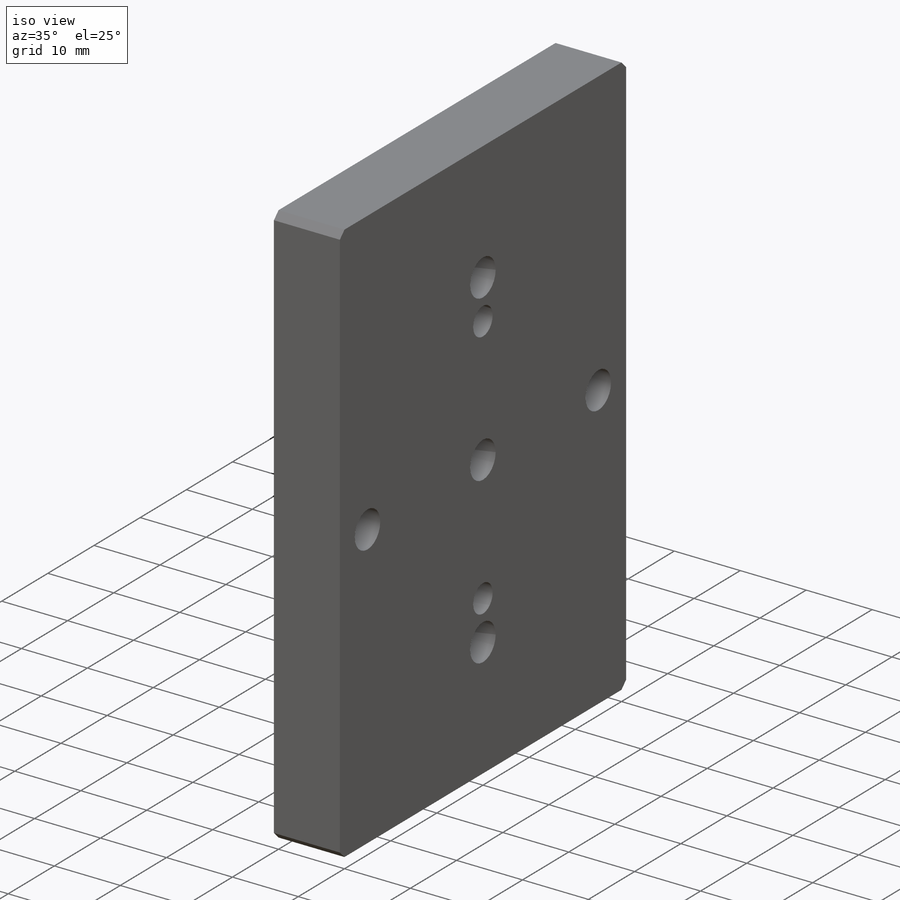
[diagram: iso view]
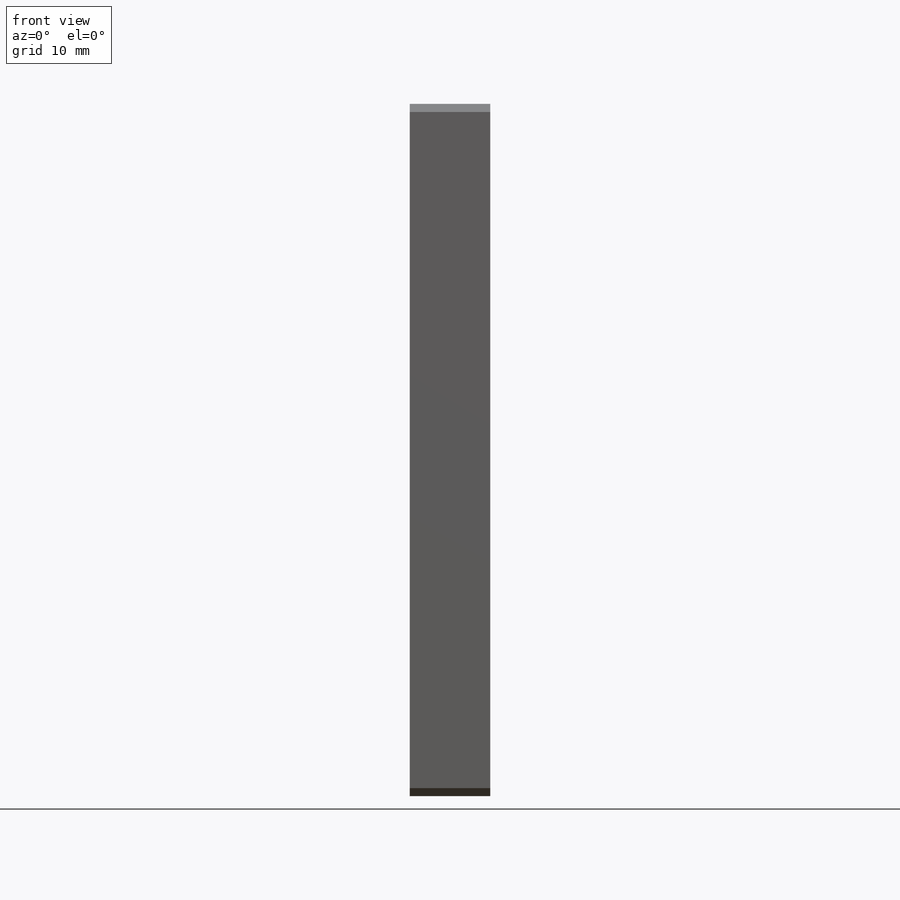
[diagram: front view]
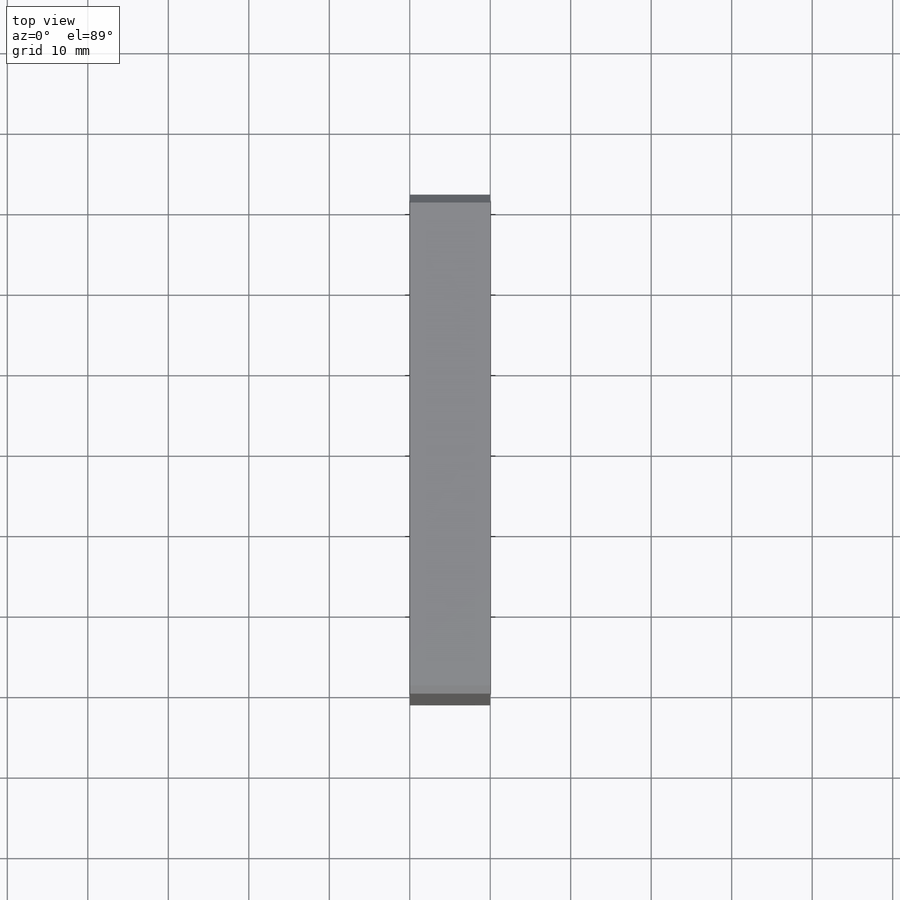
[diagram: top view]
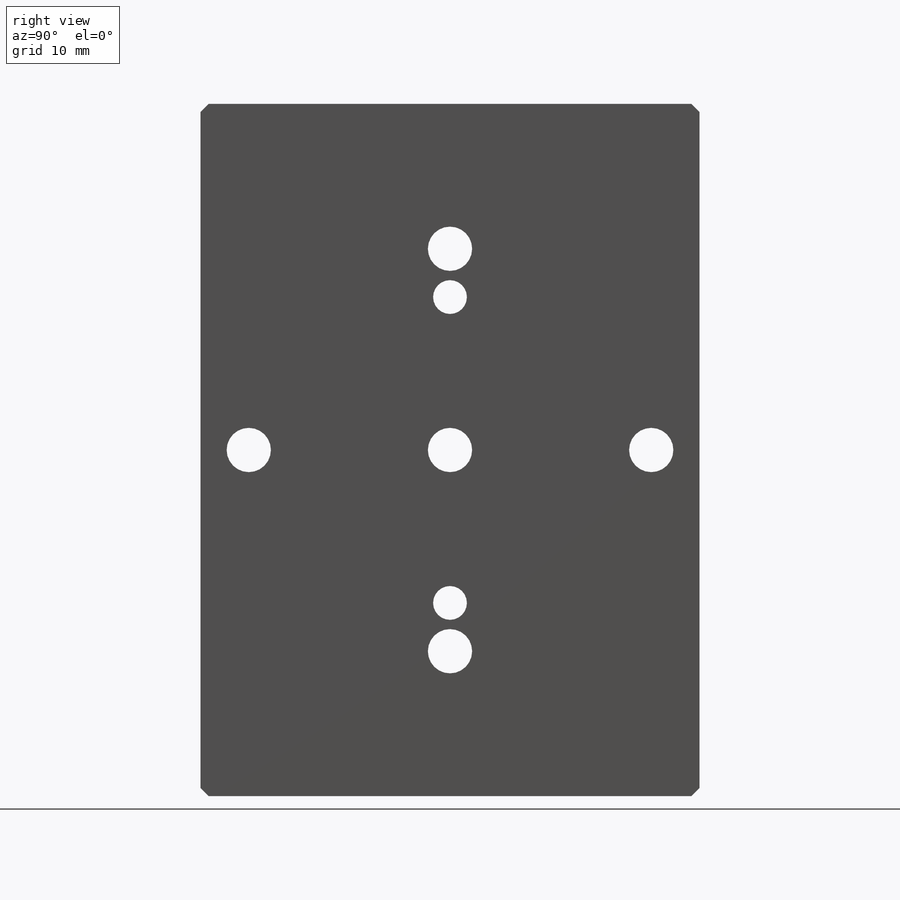
[diagram: right view]
SOLIDWORKS PART (.sldprt)
format: sldprt  version: not decoded by parser v0  size: 246,272 bytes
history: native  units: mm
features: sketch x5, plane x3, thread x2, material x1, extrude x1, chamfer x1, hole x1 (+10 scaffold rows collapsed)
feature tree (24):
  scaffold x10  (default folders/planes/origin — collapsed)
  material  "材质 <未指定>"
  plane  "前视基准面"
  plane  "上视基准面"
  plane  "右视基准面"
  sketch  "草图1"  dims[c1.D1=~170.843257mm c1.D2=~92.42286mm c2.D1=62.0mm c2.D2=86.0mm]
  extrude  "凸台-拉伸1"  Depth=10mm
  chamfer  "倒角1"  Distance=1mm Angle=45deg
  hole  "打孔尺寸(%根据)内六角圆柱头螺钉的类型1"  [1 undecoded]
  sketch  "草图5"  dims[D1=~0.150308mm D2=4.0]
  sketch  "草图4"  dims[hole-wizard template sketch: 41 standard entries collapsed; hole parameters kept: c12.通孔孔直径=5.5mm c12.通孔孔深度=10.0mm c12.柱形沉头孔直径=10.0mm c12.柱形沉头孔深度=5.5mm]
  sketch  "草图7"
  sketch  "草图6"  dims[hole-wizard template sketch: 59 standard entries collapsed; hole parameters kept: c18.通孔螺纹孔钻头直径=4.2mm c18.通孔螺纹孔钻头深度=10.0mm]
  thread  "孔螺蚊线1"  Diameter=5mm  [1 undecoded]
  thread  "孔螺蚊线2"  Diameter=5mm  [1 undecoded]
decode coverage: 8 of 10 modeling features carry decoded parameters
note: ~ marks probable driven/reference dimensions
note: 3 parameter values undecoded
note: suppression state not decoded; provenance and decode notes live in map.json
